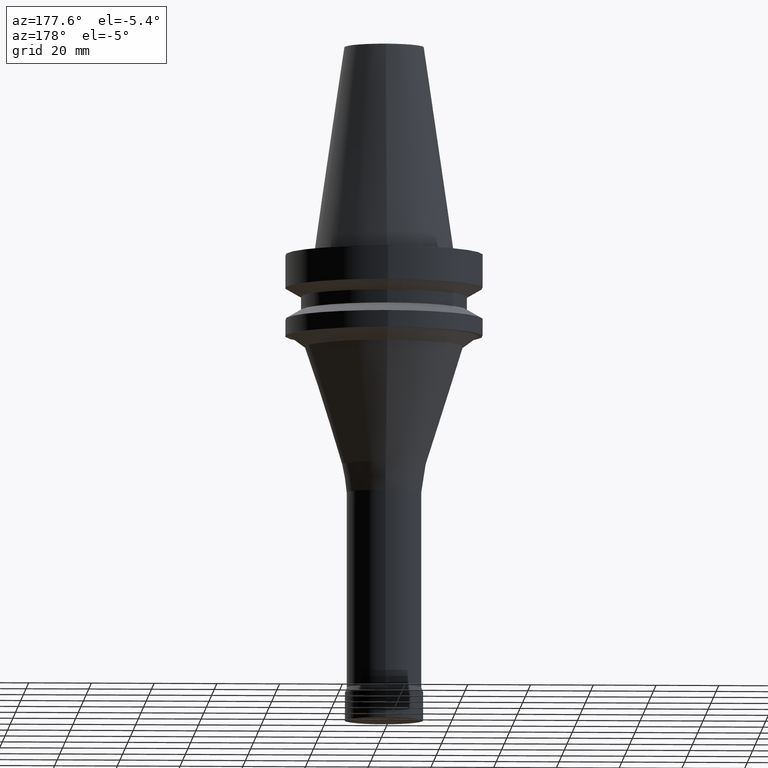
[diagram: clean part render]
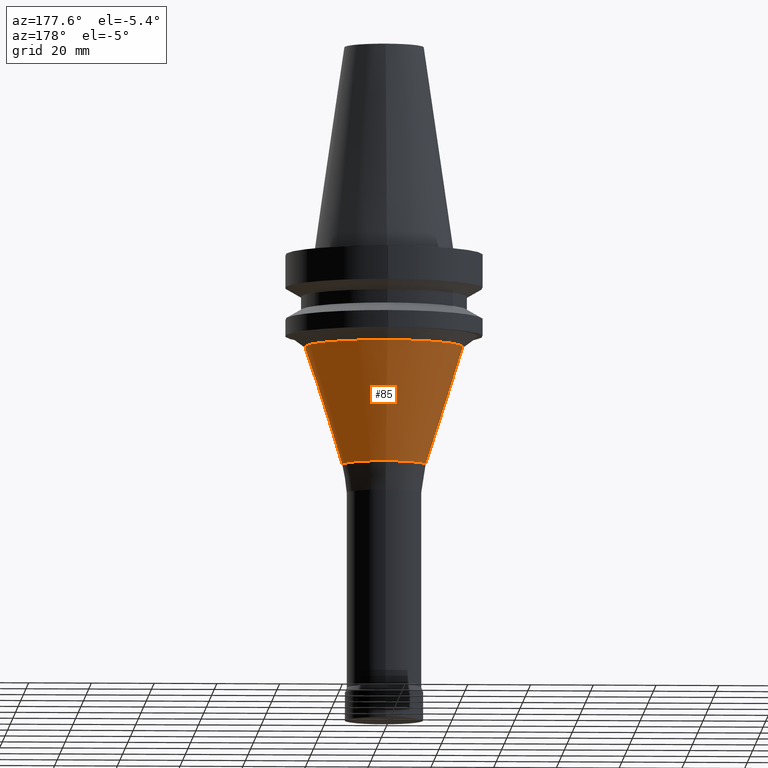
[diagram: same view with one face highlighted and labeled with its STEP entity id]
A machine part, auxiliary view. The second image highlights one B-rep face of the part: STEP entity #85.
In plain terms, the highlighted conical surface has half-angle 17.609 deg.
Its self-contained STEP definition (entity closure, byte-faithful):
#85=ADVANCED_FACE('',(#122,#123),#124,.T.);
#122=FACE_BOUND('',#171,.T.);
#123=FACE_BOUND('',#172,.T.);
#124=CONICAL_SURFACE('',#173,19.2699763012688,0.307331552844406);
#171=EDGE_LOOP('',(#240));
#172=EDGE_LOOP('',(#241));
#173=AXIS2_PLACEMENT_3D('',#242,#243,#244);
#240=ORIENTED_EDGE('',*,*,#285,.F.);
#241=ORIENTED_EDGE('',*,*,#284,.T.);
#242=CARTESIAN_POINT('',(3.01748483449384E-015,6.03496966898767E-015,-49.279267076756));
#243=DIRECTION('',(-6.12323399573677E-017,-1.22464679914735E-016,1.0));
#244=DIRECTION('',(-1.23259516440783E-032,1.0,1.22464679914735E-016));
#284=EDGE_CURVE('',#310,#310,#311,.T.);
#285=EDGE_CURVE('',#312,#312,#313,.T.);
#310=VERTEX_POINT('',#342);
#311=CIRCLE('',#343,25.23427894);
#312=VERTEX_POINT('',#344);
#313=CIRCLE('',#345,13.3056736625376);
#342=CARTESIAN_POINT('',(1.86681597340222E-015,25.23427894,-30.48741849));
#343=AXIS2_PLACEMENT_3D('',#384,#385,#386);
#344=CARTESIAN_POINT('',(4.16815369558546E-015,13.3056736625376,-68.071115663512));
#345=AXIS2_PLACEMENT_3D('',#387,#388,#389);
#384=CARTESIAN_POINT('',(1.86681597340222E-015,3.73363194680443E-015,-30.48741849));
#385=DIRECTION('',(6.12323399573677E-017,1.22464679914735E-016,-1.0));
#386=DIRECTION('',(-1.23259516440783E-032,1.0,1.22464679914735E-016));
#387=CARTESIAN_POINT('',(4.16815369558546E-015,8.33630739117092E-015,-68.071115663512));
#388=DIRECTION('',(6.12323399573677E-017,1.22464679914735E-016,-1.0));
#389=DIRECTION('',(-1.23259516440783E-032,1.0,1.22464679914735E-016));